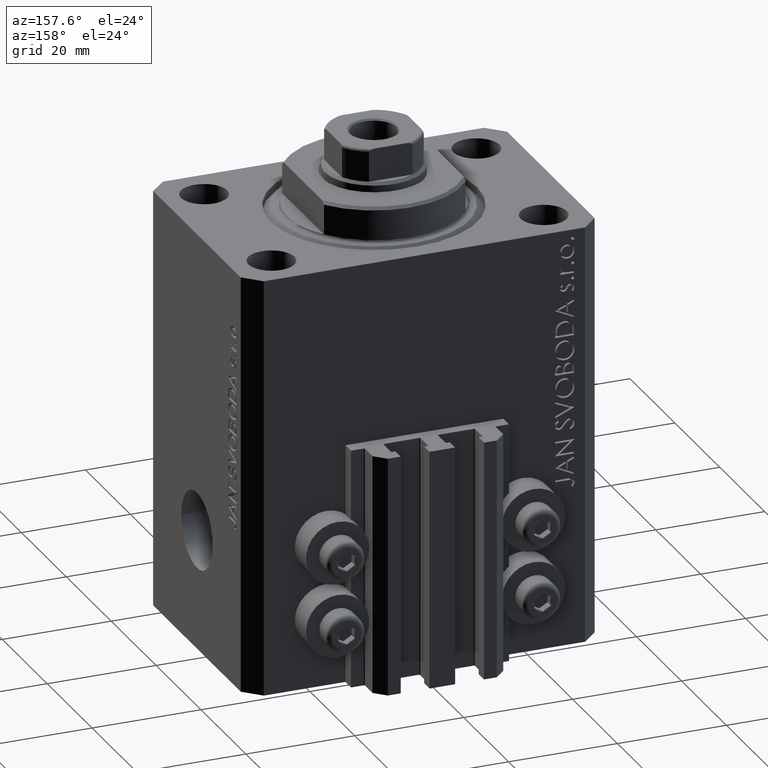
[diagram: clean part render]
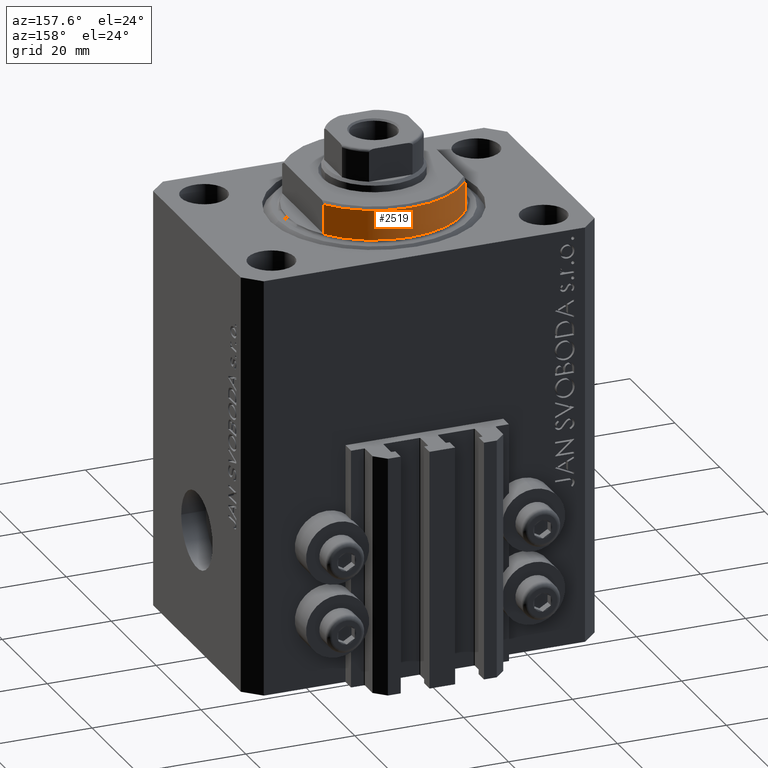
[diagram: same view with one face highlighted and labeled with its STEP entity id]
A machine part, auxiliary view. The second image highlights one B-rep face of the part: STEP entity #2519.
In plain terms, the highlighted cylindrical surface (partial cylindrical patch) has radius 16 mm, axis along (0, 0, -1).
Its self-contained STEP definition (entity closure, byte-faithful):
#119 = LINE ( 'NONE', #22935, #12948 ) ;
#526 = EDGE_CURVE ( 'NONE', #30525, #29348, #119, .T. ) ;
#2266 = AXIS2_PLACEMENT_3D ( 'NONE', #39945, #32504, #17383 ) ;
#2421 = ORIENTED_EDGE ( 'NONE', *, *, #3083, .T. ) ;
#2519 = ADVANCED_FACE ( 'NONE', ( #21232 ), #32279, .T. ) ;
#2768 = CARTESIAN_POINT ( 'NONE',  ( 13.00000000000000000, 9.327379053088916905, -6.000000000000014211 ) ) ;
#3083 = EDGE_CURVE ( 'NONE', #30525, #11244, #10725, .T. ) ;
#5317 = CIRCLE ( 'NONE', #26821, 16.00000000000000000 ) ;
#5958 = VECTOR ( 'NONE', #39855, 1000.000000000000000 ) ;
#6728 = LINE ( 'NONE', #21382, #5958 ) ;
#7168 = DIRECTION ( 'NONE',  ( 0.000000000000000000, 0.000000000000000000, 1.000000000000000000 ) ) ;
#8275 = EDGE_CURVE ( 'NONE', #40963, #29348, #5317, .T. ) ;
#10725 = CIRCLE ( 'NONE', #11479, 16.00000000000000000 ) ;
#11244 = VERTEX_POINT ( 'NONE', #28628 ) ;
#11479 = AXIS2_PLACEMENT_3D ( 'NONE', #29266, #7168, #43890 ) ;
#11711 = DIRECTION ( 'NONE',  ( 1.000000000000000000, -8.881784197001252323E-16, 0.000000000000000000 ) ) ;
#12948 = VECTOR ( 'NONE', #21978, 1000.000000000000000 ) ;
#16404 = EDGE_CURVE ( 'NONE', #11244, #40963, #6728, .T. ) ;
#17383 = DIRECTION ( 'NONE',  ( 1.000000000000000000, 0.000000000000000000, 0.000000000000000000 ) ) ;
#18877 = ORIENTED_EDGE ( 'NONE', *, *, #8275, .T. ) ;
#20065 = ORIENTED_EDGE ( 'NONE', *, *, #16404, .T. ) ;
#21232 = FACE_OUTER_BOUND ( 'NONE', #24608, .T. ) ;
#21382 = CARTESIAN_POINT ( 'NONE',  ( -13.00000000000000000, 9.327379053088813876, -6.500000000000000000 ) ) ;
#21978 = DIRECTION ( 'NONE',  ( -0.000000000000000000, -0.000000000000000000, 1.000000000000000000 ) ) ;
#22573 = ORIENTED_EDGE ( 'NONE', *, *, #526, .F. ) ;
#22935 = CARTESIAN_POINT ( 'NONE',  ( 13.00000000000000000, 9.327379053088813876, -6.500000000000000000 ) ) ;
#23835 = CARTESIAN_POINT ( 'NONE',  ( -13.00000000000000000, 9.327379053088815652, -0.4999999999999995559 ) ) ;
#24261 = CARTESIAN_POINT ( 'NONE',  ( 13.00000000000000000, 9.327379053088815652, -0.4999999999999995559 ) ) ;
#24608 = EDGE_LOOP ( 'NONE', ( #22573, #2421, #20065, #18877 ) ) ;
#26821 = AXIS2_PLACEMENT_3D ( 'NONE', #47465, #32829, #11711 ) ;
#28628 = CARTESIAN_POINT ( 'NONE',  ( -13.00000000000000000, 9.327379053088916905, -6.000000000000014211 ) ) ;
#29266 = CARTESIAN_POINT ( 'NONE',  ( 0.000000000000000000, 0.000000000000000000, -6.000000000000023981 ) ) ;
#29348 = VERTEX_POINT ( 'NONE', #24261 ) ;
#30525 = VERTEX_POINT ( 'NONE', #2768 ) ;
#32279 = CYLINDRICAL_SURFACE ( 'NONE', #2266, 16.00000000000000000 ) ;
#32504 = DIRECTION ( 'NONE',  ( -0.000000000000000000, -0.000000000000000000, 1.000000000000000000 ) ) ;
#32829 = DIRECTION ( 'NONE',  ( -0.000000000000000000, -0.000000000000000000, -1.000000000000000000 ) ) ;
#39855 = DIRECTION ( 'NONE',  ( -0.000000000000000000, -0.000000000000000000, 1.000000000000000000 ) ) ;
#39945 = CARTESIAN_POINT ( 'NONE',  ( 0.000000000000000000, 0.000000000000000000, -6.500000000000000000 ) ) ;
#40963 = VERTEX_POINT ( 'NONE', #23835 ) ;
#43890 = DIRECTION ( 'NONE',  ( -1.000000000000000000, 0.000000000000000000, 0.000000000000000000 ) ) ;
#47465 = CARTESIAN_POINT ( 'NONE',  ( 0.000000000000000000, 0.000000000000000000, -0.4999999999999995559 ) ) ;